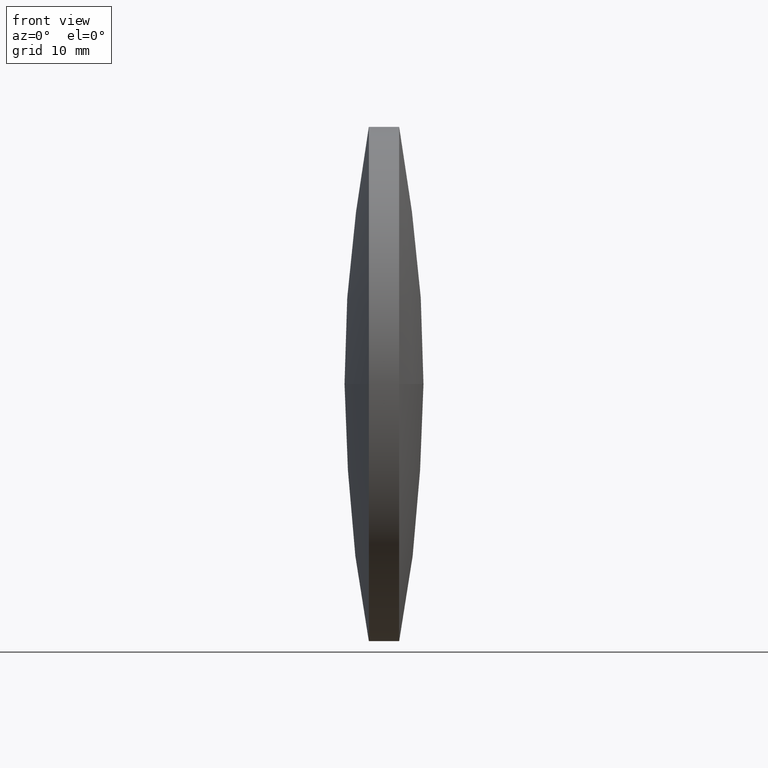
[diagram: clean part render]
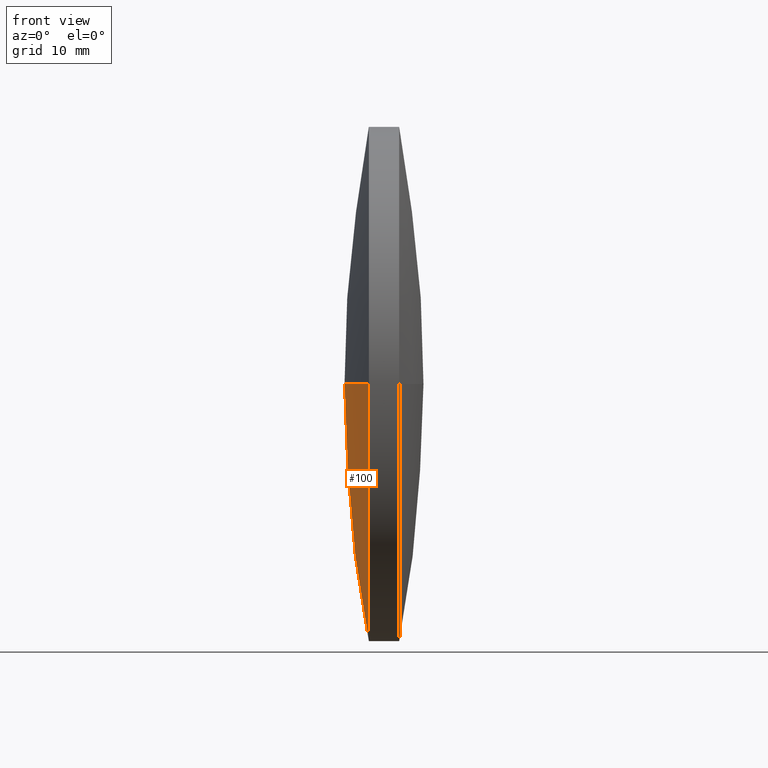
[diagram: same view with one face highlighted and labeled with its STEP entity id]
A machine part, front view. The second image highlights one B-rep face of the part: STEP entity #100.
In plain terms, the highlighted spherical surface has radius 135.608 mm.
Its self-contained STEP definition (entity closure, byte-faithful):
#7 = CARTESIAN_POINT ( 'NONE',  ( 171.4164086921822200, 97.23222604636956100, 0.0000000000000000000 ) ) ;
#8 = CARTESIAN_POINT ( 'NONE',  ( 171.4164086921822200, 97.23222604636956100, -25.39999999999999100 ) ) ;
#39 = ORIENTED_EDGE ( 'NONE', *, *, #232, .T. ) ;
#58 = EDGE_CURVE ( 'NONE', #233, #90, #312, .T. ) ;
#61 = CIRCLE ( 'NONE', #322, 135.6077941589492500 ) ;
#62 = DIRECTION ( 'NONE',  ( 0.0000000000000000000, 0.0000000000000000000, 1.000000000000000000 ) ) ;
#67 = DIRECTION ( 'NONE',  ( 0.0000000000000000000, 1.000000000000000000, 0.0000000000000000000 ) ) ;
#81 = ORIENTED_EDGE ( 'NONE', *, *, #164, .T. ) ;
#90 = VERTEX_POINT ( 'NONE', #270 ) ;
#96 = VERTEX_POINT ( 'NONE', #8 ) ;
#97 = DIRECTION ( 'NONE',  ( 0.0000000000000000000, 0.0000000000000000000, 1.000000000000000000 ) ) ;
#100 = ADVANCED_FACE ( 'NONE', ( #269 ), #147, .T. ) ;
#102 = CARTESIAN_POINT ( 'NONE',  ( 171.4164086921822200, 71.83222604636951300, -3.110602869834268200E-015 ) ) ;
#116 = CARTESIAN_POINT ( 'NONE',  ( 304.6241931368458000, 97.23222604636946200, 0.0000000000000000000 ) ) ;
#126 = DIRECTION ( 'NONE',  ( -1.000000000000000000, -0.0000000000000000000, -0.0000000000000000000 ) ) ;
#134 = AXIS2_PLACEMENT_3D ( 'NONE', #279, #126, #97 ) ;
#147 = SPHERICAL_SURFACE ( 'NONE', #280, 135.6077941589492800 ) ;
#154 = CIRCLE ( 'NONE', #234, 25.39999999999999100 ) ;
#160 = ORIENTED_EDGE ( 'NONE', *, *, #227, .F. ) ;
#162 = DIRECTION ( 'NONE',  ( -1.000000000000000000, -0.0000000000000000000, -0.0000000000000000000 ) ) ;
#164 = EDGE_CURVE ( 'NONE', #299, #96, #243, .T. ) ;
#185 = DIRECTION ( 'NONE',  ( 1.000000000000000000, 0.0000000000000000000, 0.0000000000000000000 ) ) ;
#188 = CARTESIAN_POINT ( 'NONE',  ( 171.4164086921822200, 122.6322260463695000, 0.0000000000000000000 ) ) ;
#189 = DIRECTION ( 'NONE',  ( 0.0000000000000000000, 1.000000000000000000, 1.224646799147352700E-016 ) ) ;
#191 = DIRECTION ( 'NONE',  ( 0.0000000000000000000, 1.224646799147353200E-016, -1.000000000000000000 ) ) ;
#197 = DIRECTION ( 'NONE',  ( -0.0000000000000000000, 0.0000000000000000000, -1.000000000000000000 ) ) ;
#214 = CARTESIAN_POINT ( 'NONE',  ( 304.6241931368458000, 97.23222604636946200, 0.0000000000000000000 ) ) ;
#221 = EDGE_LOOP ( 'NONE', ( #81, #39, #328, #160 ) ) ;
#227 = EDGE_CURVE ( 'NONE', #299, #90, #61, .T. ) ;
#232 = EDGE_CURVE ( 'NONE', #96, #233, #154, .T. ) ;
#233 = VERTEX_POINT ( 'NONE', #102 ) ;
#234 = AXIS2_PLACEMENT_3D ( 'NONE', #7, #162, #62 ) ;
#239 = DIRECTION ( 'NONE',  ( -0.0000000000000000000, 0.0000000000000000000, 1.000000000000000000 ) ) ;
#243 = CIRCLE ( 'NONE', #134, 25.39999999999999100 ) ;
#269 = FACE_OUTER_BOUND ( 'NONE', #221, .T. ) ;
#270 = CARTESIAN_POINT ( 'NONE',  ( 169.0163989778965300, 97.23222604636946200, 0.0000000000000000000 ) ) ;
#279 = CARTESIAN_POINT ( 'NONE',  ( 171.4164086921822200, 97.23222604636956100, 0.0000000000000000000 ) ) ;
#280 = AXIS2_PLACEMENT_3D ( 'NONE', #306, #197, #67 ) ;
#299 = VERTEX_POINT ( 'NONE', #188 ) ;
#306 = CARTESIAN_POINT ( 'NONE',  ( 304.6241931368458000, 97.23222604636946200, 0.0000000000000000000 ) ) ;
#312 = CIRCLE ( 'NONE', #334, 135.6077941589493000 ) ;
#322 = AXIS2_PLACEMENT_3D ( 'NONE', #214, #239, #185 ) ;
#328 = ORIENTED_EDGE ( 'NONE', *, *, #58, .T. ) ;
#334 = AXIS2_PLACEMENT_3D ( 'NONE', #116, #191, #189 ) ;